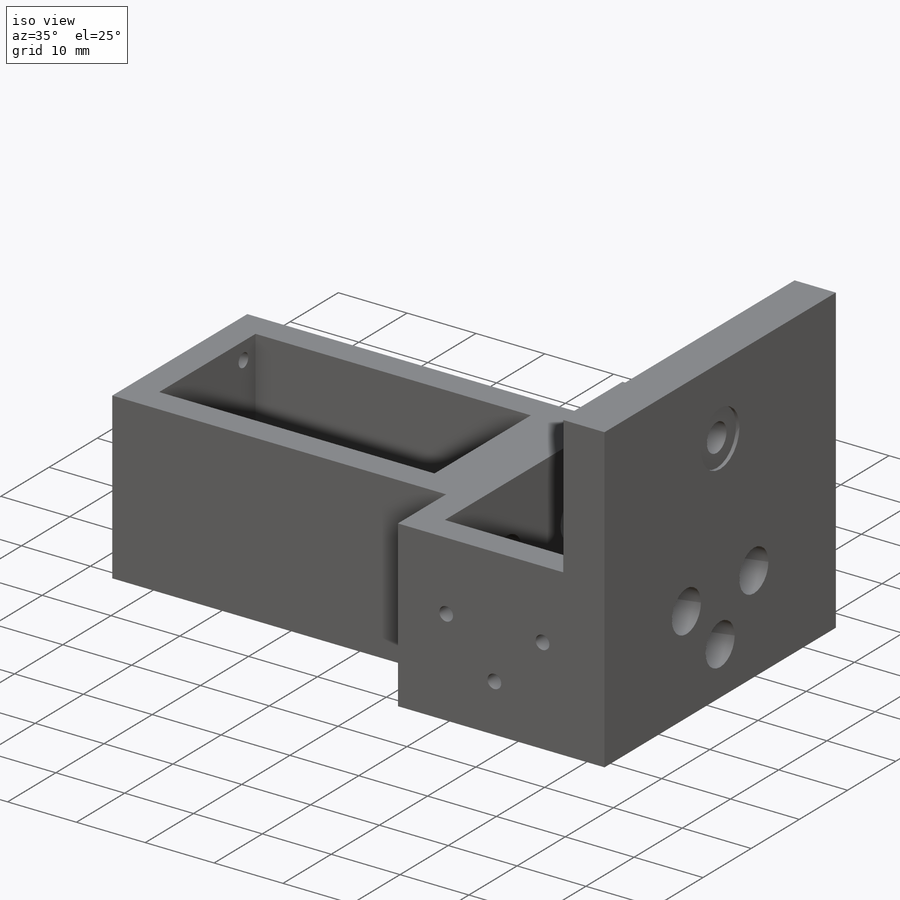
[diagram: iso view]
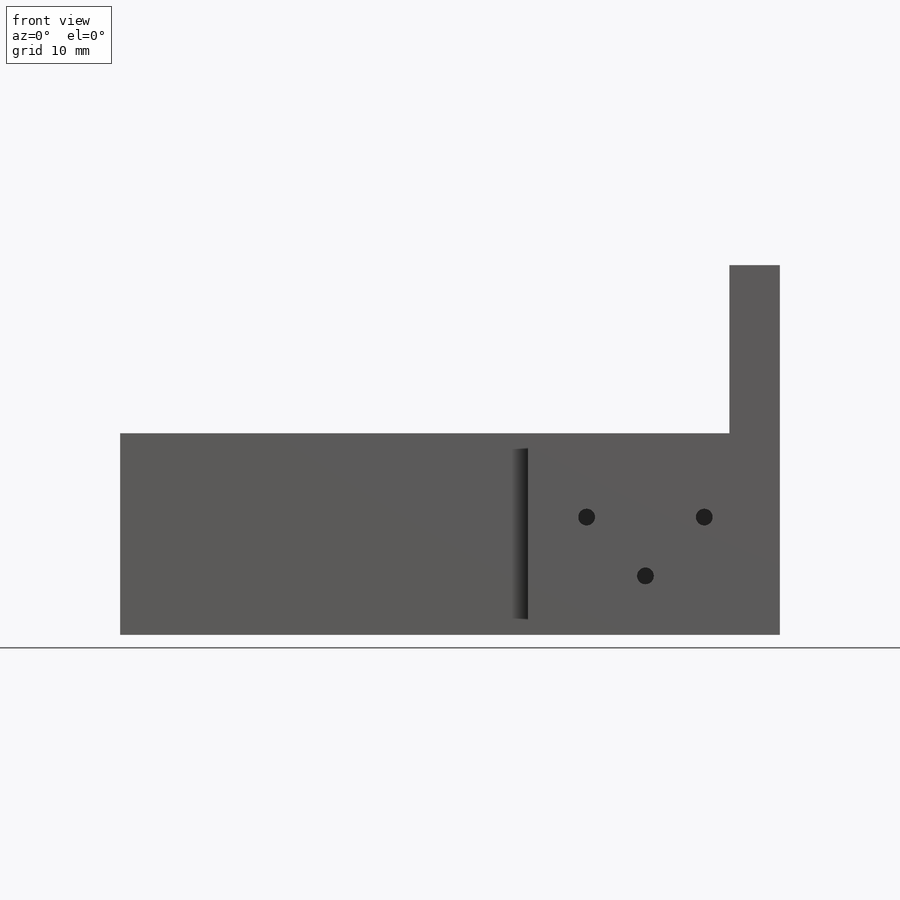
[diagram: front view]
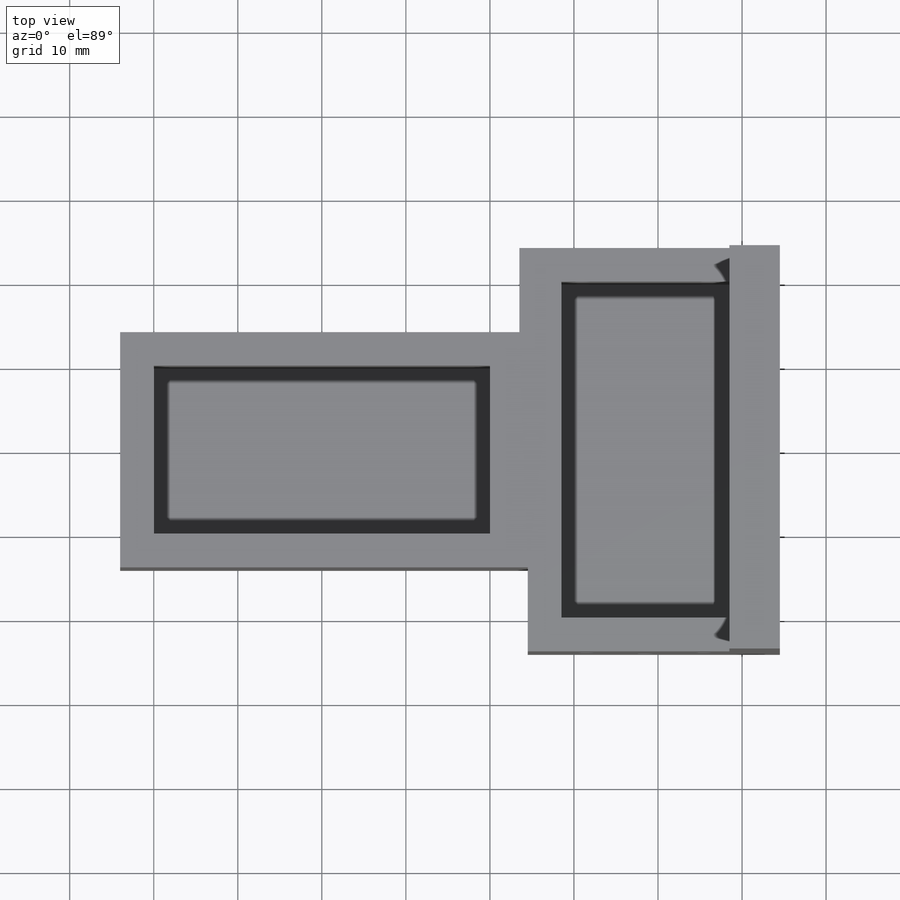
[diagram: top view]
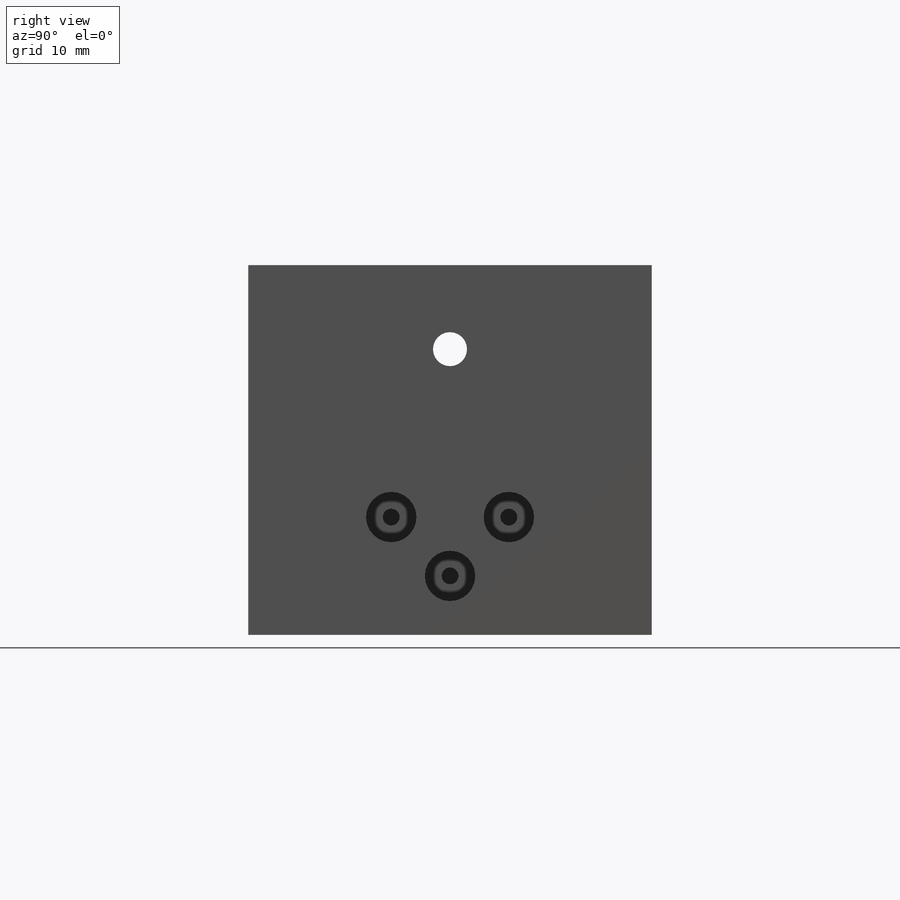
[diagram: right view]
SOLIDWORKS PART (.sldprt)
format: sldprt  version: not decoded by parser v0  size: 474,624 bytes
history: native  units: mm
features: sketch x18, cut_extrude x11, extrude x6, material x1, plane x1 (+13 scaffold rows collapsed)
feature tree (50):
  scaffold x13  (default folders/planes/origin — collapsed)
  material  "Material <sin especificar>"
  sketch  "Sketch1"  dims[D1=5.0mm]
  extrude  "Boss-Extrude1"  Depth=5mm
  sketch  "Sketch2"  dims[D1=5.0mm]
  extrude  "Boss-Extrude2"  Depth=20mm
  sketch  "Sketch3"
  extrude  "Boss-Extrude3"  Depth=4mm
  sketch  "Sketch4"
  extrude  "Boss-Extrude4"  Depth=4mm
  sketch  "Sketch6"  dims[D1=1.0mm]
  cut_extrude  "Cut-Extrude1"  Depth=218mm
  sketch  "Sketch7"  dims[D1=4.0mm]
  extrude  "Boss-Extrude5"  Depth=20mm
  sketch  "Sketch8"  dims[D1=1.0mm]
  cut_extrude  "Cut-Extrude2"  Depth=87mm
  sketch  "Sketch9"  dims[D1=7.5mm]
  cut_extrude  "Cut-Extrude3"  Depth=10mm
  sketch  "Sketch10"  dims[D1=3.0mm]
  cut_extrude  "Cut-Extrude4"  Depth=60mm
  sketch  "Sketch12"  dims[D1=~3.528603mm]
  cut_extrude  "Cut-Extrude5"  Depth=29.5mm
  sketch  "Sketch13"  dims[D1=3.0mm]
  cut_extrude  "Cut-Extrude6"  Depth=29.5mm
  sketch  "Sketch14"  dims[D1=7.5mm]
  cut_extrude  "Cut-Extrude7"  Depth=29.5mm
  sketch  "Sketch15"  dims[D1=10.0mm]
  cut_extrude  "Cut-Extrude8"  Depth=29.5mm
  sketch  "Sketch16"  dims[D1=~4.264229mm]
  cut_extrude  "Cut-Extrude9"  Depth=29.5mm
  sketch  "Sketch17"  dims[D1=~5.610389mm]
  cut_extrude  "Cut-Extrude10"  Depth=3mm
  sketch  "Sketch18"  dims[D1=0.0mm]
  extrude  "Boss-Extrude6"  Depth=2mm
  plane  "Plano1"
  sketch  "Croquis1"  dims[D1=~6.986909mm]
  sketch  "Croquis2"  dims[D1=~13.561962mm]
  cut_extrude  "Cortar-Extruir2"  Depth=0.5mm
decode coverage: 33 of 35 modeling features carry decoded parameters
note: ~ marks probable driven/reference dimensions
note: suppression state not decoded; provenance and decode notes live in map.json
